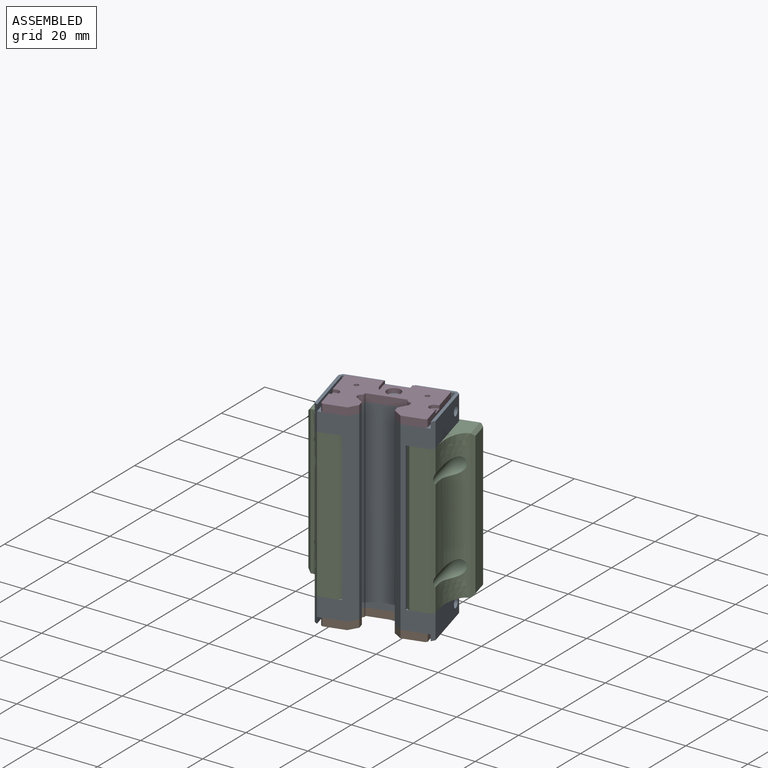
[diagram: assembled view]
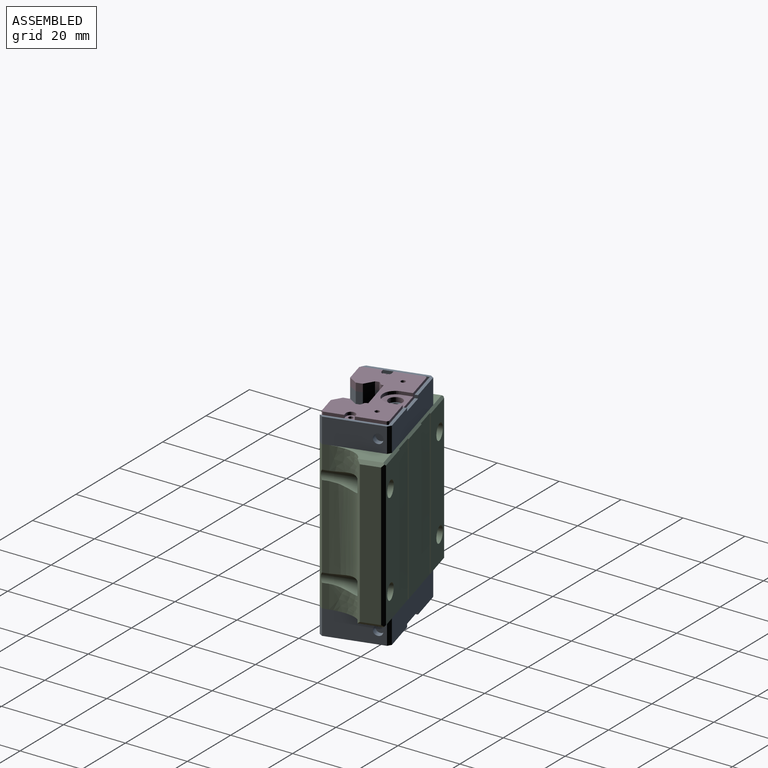
[diagram: assembled view, second angle]
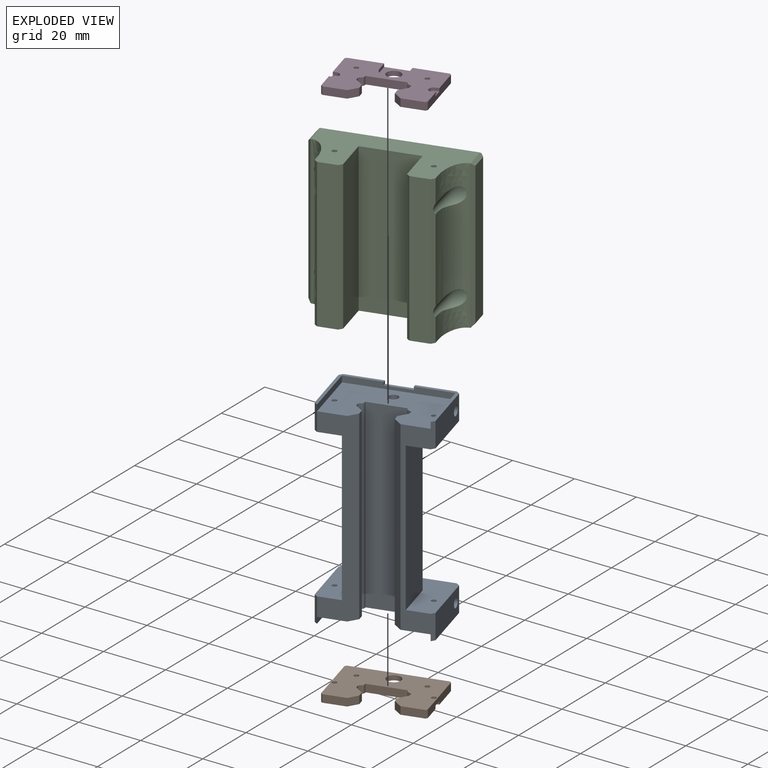
[diagram: exploded view]
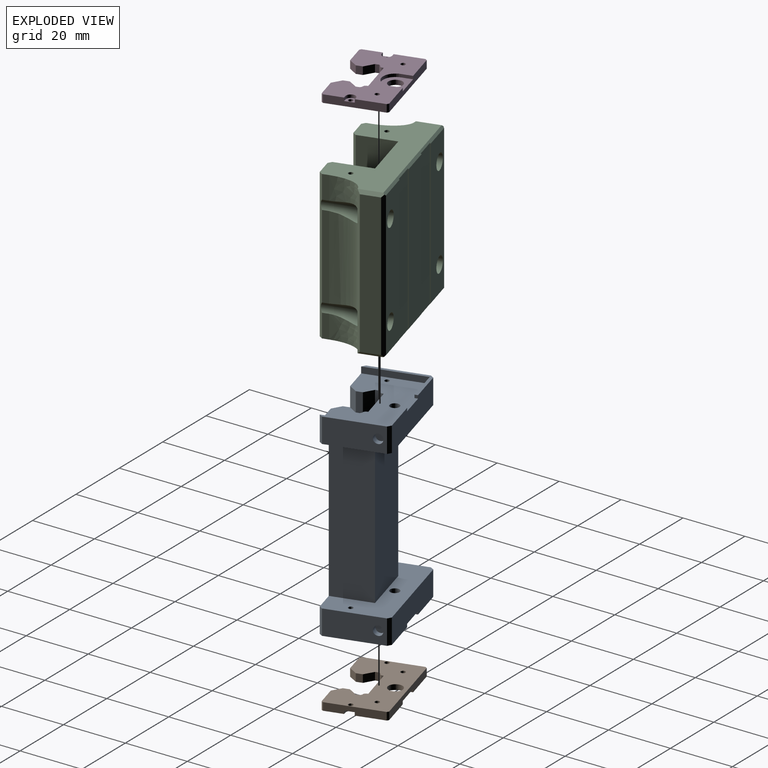
[diagram: exploded view, second angle]
ASSEMBLY  parts=4 mates=3
PART A: 70 faces, bbox 34x20.3x64 mm
  f0: plane 20.3x12.75mm, normal (0,0,-1), area 31mm2, adj f2,f3,f51,f52,f53,f57,f58
  f1: plane 20.3x12.75mm, normal (0,0,-1), area 31.1mm2, adj f2,f3,f48,f49,f50,f56,f60
  f2: plane 32x8mm, normal (0,1,0), area 247.5mm2, adj f0,f1,f50,f51,f54,f58,f59,f60
  f3: plane 32x2mm, normal (0,-1,0), area 55.5mm2, adj f0,f1,f55,f56,f57,f58,f59,f60
  f4: cylinder r=1mm len=60mm, axis (0,0,-1), area 94.2mm2, adj f5,f29,f44,f55,f69
  f5: plane 60x0.3mm, normal (1,0,0), area 18mm2, adj f4,f6,f29,f55
  f6: plane 60x12mm, normal (0,-1,0), area 720mm2, adj f5,f7,f29,f55
  f7: plane 60x0.3mm, normal (-1,0,0), area 18mm2, adj f6,f8,f29,f55
  f8: cylinder r=1mm len=60mm, axis (0,0,-1), area 94.2mm2, adj f7,f29,f43,f55,f68
  f9: plane 60x1.2mm, normal (-1,0,0), area 72mm2, adj f10,f29,f43,f55,f68
  f10: plane 60x2.5mm, normal (-0.71,0.71,0), area 212.1mm2, adj f9,f11,f29,f55
  f11: plane 60x2mm, normal (-1,0,0), area 120mm2, adj f10,f12,f29,f55
  f12: plane 60x2.5mm, normal (-0.71,-0.71,0), area 212.1mm2, adj f11,f13,f29,f55
  f13: plane 60x8.5mm, normal (0,-1,0), area 174mm2, adj f12,f20,f28,f29,f47,f53,f54,f55
  f14: plane 60x8.5mm, normal (0,-1,0), area 174mm2, adj f15,f26,f28,f29,f45,f48,f54,f55
  f15: plane 60x2.5mm, normal (0.71,-0.71,0), area 212.1mm2, adj f14,f16,f29,f55
  f16: plane 60x2mm, normal (1,0,0), area 120mm2, adj f15,f17,f29,f55
  f17: plane 60x2.5mm, normal (0.71,0.71,0), area 212.1mm2, adj f16,f18,f29,f55
  f18: plane 60x1.2mm, normal (1,0,0), area 72mm2, adj f17,f29,f44,f55,f69
  f19: plane 20.3x12.75mm, normal (0,0,1), area 31mm2, adj f20,f21,f22,f23,f30,f32,f33
  f20: plane 8x1mm, normal (0.71,-0.71,0), area 11.3mm2, adj f13,f19,f21,f28,f30
  f21: plane 18.3x8mm, normal (1,0,0), area 139.3mm2, adj f19,f20,f22,f28,f39
  f22: plane 8x1mm, normal (0.71,0.71,0), area 11.3mm2, adj f19,f21,f23,f28
  f23: plane 32x8mm, normal (0,1,0), area 247.5mm2, adj f19,f22,f24,f27,f28,f33,f34,f35
  f24: plane 8x1mm, normal (-0.71,0.71,0), area 11.3mm2, adj f23,f25,f27,f28
  f25: plane 18.3x8mm, normal (-1,0,0), area 139.3mm2, adj f24,f26,f27,f28,f41
  f26: plane 8x1mm, normal (-0.71,-0.71,0), area 11.3mm2, adj f14,f25,f27,f28,f31
  f27: plane 20.3x12.75mm, normal (0,0,1), area 31.1mm2, adj f23,f24,f25,f26,f31,f32,f34
  f28: plane 34x20.3mm, normal (0,0,-1), area 443.6mm2, adj f13,f14,f20,f21,f22,f23,f24,f25
  f29: plane 32x19.3mm, normal (0,0,1), area 483.2mm2, adj f4,f5,f6,f7,f8,f9,f10,f11
  f30: plane 19.3x2mm, normal (-1,0,0), area 38.6mm2, adj f19,f20,f29,f32
  f31: plane 19.3x2mm, normal (1,0,0), area 38.6mm2, adj f26,f27,f29,f32
  f32: plane 32x2mm, normal (0,-1,0), area 55.5mm2, adj f19,f27,f29,f30,f31,f33,f34,f35
  f33: plane 1x1mm, normal (-1,0,0), area 1mm2, adj f19,f23,f32,f35
  f34: plane 1x1mm, normal (1,0,0), area 1mm2, adj f23,f27,f32,f35
  f35: plane 8.5x1mm, normal (0,0,1), area 8.5mm2, adj f23,f32,f33,f34
  f36: cylinder r=1.5mm len=6mm, axis (0,0,1), area 56.5mm2, adj f28,f29
  f37: cylinder r=0.75mm len=6mm, axis (0,0,1), area 28.3mm2, adj f28,f29
  f38: cylinder r=0.75mm len=6mm, axis (0,0,1), area 28.3mm2, adj f28,f29
  f39: cylinder r=1.5mm len=3mm, axis (1,0,0), area 18.8mm2, adj f21,f40
  f40: plane 3x3mm, normal (1,0,0), area 7.1mm2, adj f39
  f41: cylinder r=1.5mm len=3mm, axis (-1,0,0), area 18.8mm2, adj f25,f42
  f42: plane 3x3mm, normal (-1,0,0), area 7.1mm2, adj f41
  f43: plane 54x0.5mm, normal (-0.71,-0.71,0), area 38.2mm2, adj f8,f9,f29,f68
  f44: plane 54x0.5mm, normal (0.71,-0.71,0), area 38.2mm2, adj f4,f18,f29,f69
  f45: plane 48x13mm, normal (-1,0,0), area 624mm2, adj f14,f28,f46,f54
  f46: plane 48x18mm, normal (0,1,0), area 864mm2, adj f28,f45,f47,f54
  f47: plane 48x13mm, normal (1,0,0), area 624mm2, adj f13,f28,f46,f54
  f48: plane 8x1mm, normal (-0.71,-0.71,0), area 11.3mm2, adj f1,f14,f49,f54,f56
  f49: plane 18.3x8mm, normal (-1,0,0), area 139.3mm2, adj f1,f48,f50,f54,f66
  f50: plane 8x1mm, normal (-0.71,0.71,0), area 11.3mm2, adj f1,f2,f49,f54
  f51: plane 8x1mm, normal (0.71,0.71,0), area 11.3mm2, adj f0,f2,f52,f54
  f52: plane 18.3x8mm, normal (1,0,0), area 139.3mm2, adj f0,f51,f53,f54,f64
  f53: plane 8x1mm, normal (0.71,-0.71,0), area 11.3mm2, adj f0,f13,f52,f54,f57
  f54: plane 34x20.3mm, normal (0,0,1), area 443.6mm2, adj f2,f13,f14,f45,f46,f47,f48,f49
  f55: plane 32x19.3mm, normal (0,0,-1), area 483.2mm2, adj f3,f4,f5,f6,f7,f8,f9,f10
  f56: plane 19.3x2mm, normal (1,0,0), area 38.6mm2, adj f1,f3,f48,f55
  f57: plane 19.3x2mm, normal (-1,0,0), area 38.6mm2, adj f0,f3,f53,f55
  f58: plane 1x1mm, normal (-1,0,0), area 1mm2, adj f0,f2,f3,f59
  f59: plane 8.5x1mm, normal (0,0,-1), area 8.5mm2, adj f2,f3,f58,f60
  f60: plane 1x1mm, normal (1,0,0), area 1mm2, adj f1,f2,f3,f59
  f61: cylinder r=1.5mm len=6mm, axis (0,0,-1), area 56.5mm2, adj f54,f55
  f62: cylinder r=0.75mm len=6mm, axis (0,0,-1), area 28.3mm2, adj f54,f55
  f63: cylinder r=0.75mm len=6mm, axis (0,0,-1), area 28.3mm2, adj f54,f55
  f64: cylinder r=1.5mm len=3mm, axis (1,0,0), area 18.8mm2, adj f52,f65
  f65: plane 3x3mm, normal (1,0,0), area 7.1mm2, adj f64
  f66: cylinder r=1.5mm len=3mm, axis (-1,0,0), area 18.8mm2, adj f49,f67
  f67: plane 3x3mm, normal (-1,0,0), area 7.1mm2, adj f66
  f68: plane 6x0.5mm, normal (-0.71,-0.71,0), area 4.2mm2, adj f8,f9,f43,f55
  f69: plane 6x0.5mm, normal (0.71,-0.71,0), area 4.2mm2, adj f4,f18,f44,f55
PART B: 43 faces, bbox 30x19x2.5 mm
  f0: cylinder r=0.75mm len=1.5mm, axis (0,0,-1), area 7.1mm2, adj f4,f38
  f1: cylinder r=0.75mm len=1.5mm, axis (0,0,-1), area 7.1mm2, adj f4,f34
  f2: cylinder r=2.25mm len=4.5mm, axis (0,0,-1), area 21.2mm2, adj f4,f30
  f3: plane 30x19mm, normal (0,0,1), area 376mm2, adj f5,f6,f7,f8,f9,f10,f11,f12
  f4: plane 30x19mm, normal (0,0,-1), area 422.7mm2, adj f0,f1,f2,f5,f6,f7,f8,f9
  f5: plane 18x2.5mm, normal (1,0,0), area 42mm2, adj f3,f4,f32,f33,f34,f40,f41
  f6: plane 29x2.5mm, normal (0,1,0), area 64.5mm2, adj f3,f4,f28,f29,f30,f41,f42
  f7: plane 18x2.5mm, normal (-1,0,0), area 42mm2, adj f3,f4,f36,f37,f38,f39,f42
  f8: plane 7x2.5mm, normal (0,-1,0), area 17.5mm2, adj f3,f4,f9,f39
  f9: plane 2.5x2.5mm, normal (0.71,-0.71,0), area 8.8mm2, adj f3,f4,f8,f10
  f10: plane 2.5x2mm, normal (1,0,0), area 5mm2, adj f3,f4,f9,f11
  f11: plane 2.5x2.5mm, normal (0.71,0.71,0), area 8.8mm2, adj f3,f4,f10,f12
  f12: plane 2.5x1.2mm, normal (1,0,0), area 3mm2, adj f3,f4,f11,f26
  f13: cylinder r=1mm len=2.5mm, axis (0,0,-1), area 3.9mm2, adj f3,f4,f14,f26
  f14: plane 2.5x0.3mm, normal (1,0,0), area 0.8mm2, adj f3,f4,f13,f15
  f15: plane 12x2.5mm, normal (0,-1,0), area 30mm2, adj f3,f4,f14,f16
  f16: plane 2.5x0.3mm, normal (-1,0,0), area 0.8mm2, adj f3,f4,f15,f17
  f17: cylinder r=1mm len=2.5mm, axis (0,0,-1), area 3.9mm2, adj f3,f4,f16,f25
  f18: plane 2.5x1.2mm, normal (-1,0,0), area 3mm2, adj f3,f4,f19,f25
  f19: plane 2.5x2.5mm, normal (-0.71,0.71,0), area 8.8mm2, adj f3,f4,f18,f20
  f20: plane 2.5x2mm, normal (-1,0,0), area 5mm2, adj f3,f4,f19,f21
  f21: plane 2.5x2.5mm, normal (-0.71,-0.71,0), area 8.8mm2, adj f3,f4,f20,f22
  f22: plane 7x2.5mm, normal (0,-1,0), area 17.5mm2, adj f3,f4,f21,f40
  f23: cylinder r=0.75mm len=2.5mm, axis (0,0,-1), area 11.8mm2, adj f3,f4
  f24: cylinder r=0.75mm len=2.5mm, axis (0,0,-1), area 11.8mm2, adj f3,f4
  f25: plane 2.5x0.5mm, normal (-0.71,-0.71,0), area 1.8mm2, adj f3,f4,f17,f18
  f26: plane 2.5x0.5mm, normal (0.71,-0.71,0), area 1.8mm2, adj f3,f4,f12,f13
  f27: cylinder r=4mm len=8mm, axis (0,0,1), area 12.6mm2, adj f3,f28,f29,f30
  f28: plane 3.5x1mm, normal (1,0,0), area 3.5mm2, adj f3,f6,f27,f30
  f29: plane 3.5x1mm, normal (-1,0,0), area 3.5mm2, adj f3,f6,f27,f30
  f30: plane 8x7.5mm, normal (0,0,1), area 37.2mm2, adj f2,f6,f27,f28,f29
  f31: cylinder r=1.5mm len=3mm, axis (0,0,1), area 4.7mm2, adj f3,f32,f33,f34
  f32: plane 1x1mm, normal (0,-1,0), area 1mm2, adj f3,f5,f31,f34
  f33: plane 1x1mm, normal (0,1,0), area 1mm2, adj f3,f5,f31,f34
  f34: plane 3x2.5mm, normal (0,0,1), area 4.8mm2, adj f1,f5,f31,f32,f33
  f35: cylinder r=1.5mm len=3mm, axis (0,0,1), area 4.7mm2, adj f3,f36,f37,f38
  f36: plane 1x1mm, normal (0,1,0), area 1mm2, adj f3,f7,f35,f38
  f37: plane 1x1mm, normal (0,-1,0), area 1mm2, adj f3,f7,f35,f38
  f38: plane 3x2.5mm, normal (0,0,1), area 4.8mm2, adj f0,f7,f35,f36,f37
  f39: plane 2.5x0.5mm, normal (-0.71,-0.71,0), area 1.8mm2, adj f3,f4,f7,f8
  f40: plane 2.5x0.5mm, normal (0.71,-0.71,0), area 1.8mm2, adj f3,f4,f5,f22
  f41: plane 2.5x0.5mm, normal (0.71,0.71,0), area 1.8mm2, adj f3,f4,f5,f6
  f42: plane 2.5x0.5mm, normal (-0.71,0.71,0), area 1.8mm2, adj f3,f4,f6,f7
PART C: 52 faces, bbox 49.3x23.3x50.3 mm
  f0: plane 27x2mm, normal (-1,0,0), area 54mm2, adj f24,f37,f40,f41
  f1: plane 27x2mm, normal (1,0,0), area 54mm2, adj f27,f36,f42,f43
  f2: plane 7.5x2mm, normal (1,0,0), area 15mm2, adj f22,f27,f36,f42
  f3: plane 7.5x2mm, normal (-1,0,0), area 15mm2, adj f23,f24,f37,f40
  f4: plane 47x0.2mm, normal (1,0,0), area 9.4mm2, adj f5,f21,f34,f35
  f5: plane 46.6x10mm, normal (0,1,0), area 466mm2, adj f4,f6,f34,f35
  f6: plane 47x0.2mm, normal (-1,0,0), area 9.4mm2, adj f5,f7,f34,f35
  f7: plane 47x7mm, normal (0,1,0), area 329mm2, adj f6,f8,f34,f35
  f8: plane 47x0.2mm, normal (1,0,0), area 9.4mm2, adj f7,f9,f34,f35
  f9: plane 46.6x10.5mm, normal (0,1,0), area 450mm2, adj f8,f29,f34,f35,f40,f41
  f10: plane 46x6mm, normal (-1,0,0), area 276mm2, adj f28,f29,f30,f39
  f11: plane 7.5x2mm, normal (-1,0,0), area 15mm2, adj f22,f24,f37,f41
  f12: plane 48x6mm, normal (0,-1,0), area 288mm2, adj f22,f23,f24,f25
  f13: plane 48x12mm, normal (1,0,0), area 576mm2, adj f14,f22,f23,f25
  f14: plane 48x18mm, normal (0,-1,0), area 864mm2, adj f13,f15,f22,f23
  f15: plane 48x12mm, normal (-1,0,0), area 576mm2, adj f14,f22,f23,f26
  f16: plane 48x6mm, normal (0,-1,0), area 288mm2, adj f22,f23,f26,f27
  f17: plane 7.5x2mm, normal (1,0,0), area 15mm2, adj f23,f27,f36,f43
  f18: plane 46x6mm, normal (1,0,0), area 276mm2, adj f31,f32,f33,f38
  f19: plane 46.6x10.5mm, normal (0,1,0), area 450mm2, adj f20,f32,f34,f35,f42,f43
  f20: plane 47x0.2mm, normal (-1,0,0), area 9.4mm2, adj f19,f21,f34,f35
  f21: plane 47x7mm, normal (0,1,0), area 329mm2, adj f4,f20,f34,f35
  f22: plane 47.28x22.58mm, normal (0,0,1), area 554.8mm2, adj f2,f11,f12,f13,f14,f15,f16,f24
  f23: plane 47.26x22.56mm, normal (0,0,-1), area 554.8mm2, adj f3,f12,f13,f14,f15,f16,f17,f24
  f24: plane 49x2mm, normal (-0.71,-0.71,0), area 65mm2, adj f0,f3,f11,f12,f22,f23,f40,f41
  f25: plane 48x1mm, normal (0.71,-0.71,0), area 67.9mm2, adj f12,f13,f22,f23
  f26: plane 48x1mm, normal (-0.71,-0.71,0), area 67.9mm2, adj f15,f16,f22,f23
  f27: plane 49x2mm, normal (0.71,-0.71,0), area 65mm2, adj f1,f2,f16,f17,f22,f23,f42,f43
  f28: plane 7.65x1mm, normal (-0.71,0,0.71), area 9.7mm2, adj f10,f22,f29,f34,f39
  f29: plane 47.3x1mm, normal (-0.71,0.71,0), area 66.1mm2, adj f9,f10,f28,f30,f34,f35
  f30: plane 7.65x1mm, normal (-0.71,0,-0.71), area 9.7mm2, adj f10,f23,f29,f35,f39
  f31: plane 7.65x1mm, normal (0.71,0,0.71), area 9.7mm2, adj f18,f22,f32,f34,f38
  f32: plane 47.3x1mm, normal (0.71,0.71,0), area 66.1mm2, adj f18,f19,f31,f33,f34,f35
  f33: plane 7.65x1mm, normal (0.71,0,-0.71), area 9.7mm2, adj f18,f23,f32,f35,f38
  f34: plane 45.7x0.7mm, normal (0,0.71,0.71), area 40.9mm2, adj f4,f5,f6,f7,f8,f9,f19,f20
  f35: plane 45.7x0.7mm, normal (0,0.71,-0.71), area 40.9mm2, adj f4,f5,f6,f7,f8,f9,f19,f20
  f36: extruded ~48x10mm, area 505.4mm2, adj f1,f2,f17,f22,f23,f38,f42,f43
  f37: extruded ~48x10mm, area 505.5mm2, adj f0,f3,f11,f22,f23,f39,f40,f41
  f38: plane 48x1mm, normal (0.71,-0.71,0), area 66.5mm2, adj f18,f31,f33,f36
  f39: plane 48x1mm, normal (-0.71,-0.71,0), area 66.5mm2, adj f10,f28,f30,f37
  f40: cylinder r=2.5mm len=20mm, axis (0,1,0), area 195.7mm2, adj f0,f3,f9,f24,f37
  f41: cylinder r=2.5mm len=20.5mm, axis (0,1,0), area 193.9mm2, adj f0,f9,f11,f24,f37
  f42: cylinder r=2.5mm len=20mm, axis (0,1,0), area 195.7mm2, adj f1,f2,f19,f27,f36
  f43: cylinder r=2.5mm len=20mm, axis (0,1,0), area 192.8mm2, adj f1,f17,f19,f27,f36
  f44: cylinder r=0.75mm len=5mm, axis (0,0,1), area 23.6mm2, adj f22,f45
  f45: plane 1.5x1.5mm, normal (0,0,1), area 1.8mm2, adj f44
  f46: cylinder r=0.75mm len=5mm, axis (0,0,1), area 23.6mm2, adj f22,f47
  f47: plane 1.5x1.5mm, normal (0,0,1), area 1.8mm2, adj f46
  f48: cylinder r=0.75mm len=5mm, axis (0,0,-1), area 23.6mm2, adj f23,f49
  f49: plane 1.5x1.5mm, normal (0,0,-1), area 1.8mm2, adj f48
  f50: cylinder r=0.75mm len=5mm, axis (0,0,-1), area 23.6mm2, adj f23,f51
  f51: plane 1.5x1.5mm, normal (0,0,-1), area 1.8mm2, adj f50
PART D: same geometry as B
PLACE A rot(axis=(0,0,1),15deg) t=(-39.53,-28.21,47.14)mm
PLACE B rot(axis=(0.13,-0.99,0),180deg) t=(-41.08,-22.41,-6.86)mm
PLACE C rot(axis=(0,0,1),15deg) t=(-38.62,-31.59,-0.86)mm
PLACE D rot(axis=(0,0,1),15deg) t=(-41.08,-22.41,53.14)mm
MATE slider C.f44 <-> A.f37  axis (0,0,1) through (-54.22,-27.49,47.14)mm
MATE slider B.f1 <-> A.f37  axis (0,0,1) through (-54.22,-27.49,-6.86)mm
MATE slider D.f0 <-> A.f37  axis (0,0,-1) through (-54.22,-27.49,53.14)mm
